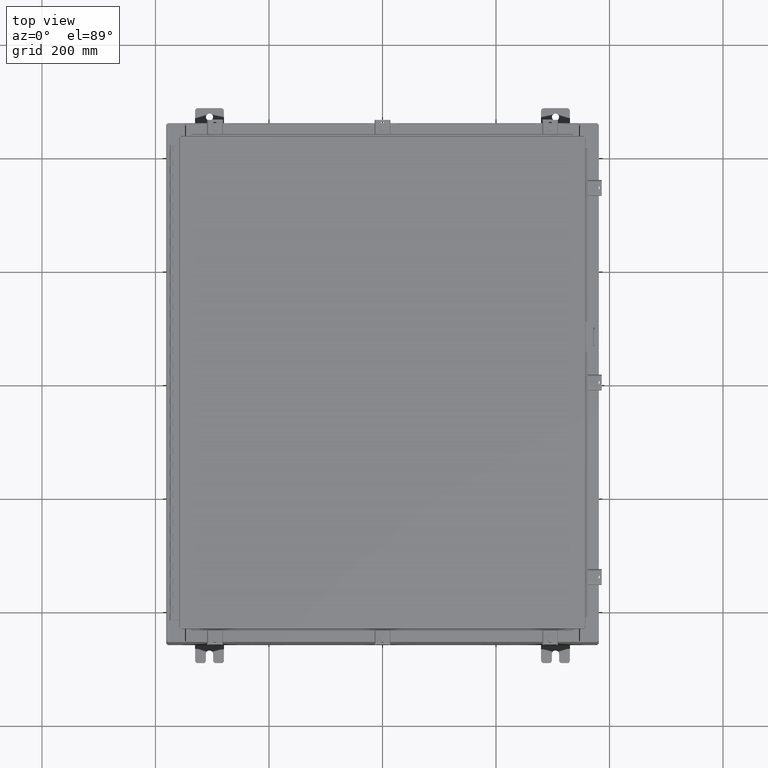
[diagram: clean part render]
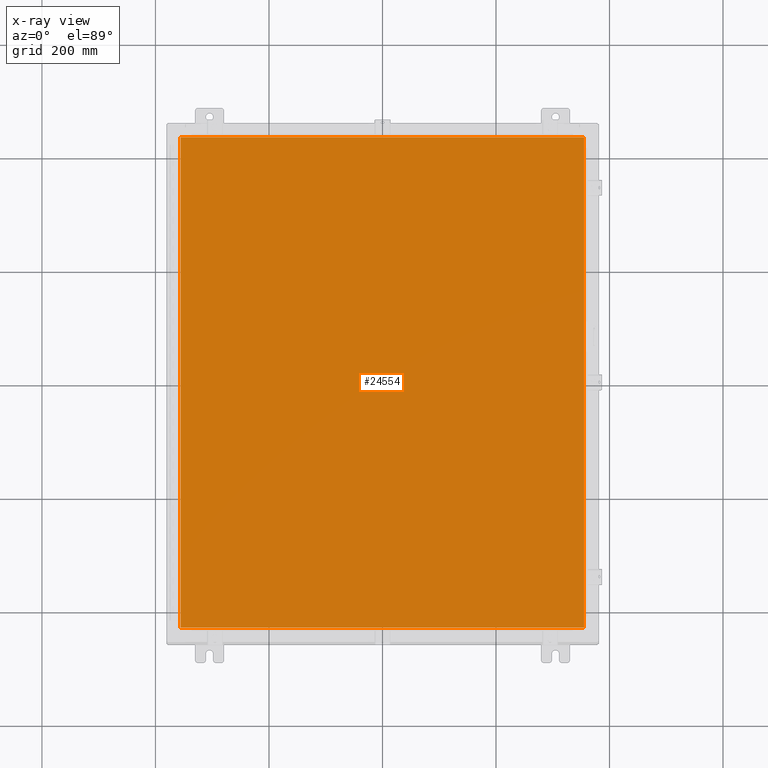
[diagram: x-ray — body ghosted, one internal face saturated and labeled with its STEP entity id]
A machine part, top view, then the same camera in x-ray: the body is ghosted and one INTERNAL B-rep face — a face not visible from any outside direction — is saturated and labeled: STEP entity #24554.
In plain terms, the highlighted planar face has unit normal (0, 0, -1).
Its self-contained STEP definition (entity closure, byte-faithful):
#842 = CARTESIAN_POINT ( 'NONE',  ( 13.99029999999999200, 17.00630000000000300, -0.07470000000000129300 ) ) ;
#859 = DIRECTION ( 'NONE',  ( 0.0000000000000000000, -1.000000000000000000, 0.0000000000000000000 ) ) ;
#1114 = CARTESIAN_POINT ( 'NONE',  ( 13.99029999999999200, 17.00630000000000300, -0.07470000000000000300 ) ) ;
#2441 = DIRECTION ( 'NONE',  ( 0.0000000000000000000, 1.000000000000000000, 0.0000000000000000000 ) ) ;
#4951 = EDGE_CURVE ( 'NONE', #21770, #6842, #22346, .T. ) ;
#5833 = VECTOR ( 'NONE', #23669, 39.37007874015748100 ) ;
#6627 = ORIENTED_EDGE ( 'NONE', *, *, #16957, .F. ) ;
#6842 = VERTEX_POINT ( 'NONE', #29648 ) ;
#10251 = DIRECTION ( 'NONE',  ( -1.000000000000000000, 0.0000000000000000000, -0.0000000000000000000 ) ) ;
#12563 = VECTOR ( 'NONE', #859, 39.37007874015748100 ) ;
#13214 = LINE ( 'NONE', #842, #21972 ) ;
#16957 = EDGE_CURVE ( 'NONE', #34428, #21770, #13214, .T. ) ;
#18318 = EDGE_CURVE ( 'NONE', #6842, #35982, #23492, .T. ) ;
#19674 = EDGE_CURVE ( 'NONE', #35982, #34428, #35352, .T. ) ;
#20026 = CARTESIAN_POINT ( 'NONE',  ( 0.0000000000000000000, 0.0000000000000000000, -0.07470000000000000300 ) ) ;
#20221 = ORIENTED_EDGE ( 'NONE', *, *, #19674, .F. ) ;
#21770 = VERTEX_POINT ( 'NONE', #23411 ) ;
#21972 = VECTOR ( 'NONE', #41975, 39.37007874015748100 ) ;
#22346 = LINE ( 'NONE', #42485, #12563 ) ;
#23246 = AXIS2_PLACEMENT_3D ( 'NONE', #20026, #30065, #10251 ) ;
#23411 = CARTESIAN_POINT ( 'NONE',  ( -13.99030000000000700, 17.00630000000000300, -0.07470000000000000300 ) ) ;
#23492 = LINE ( 'NONE', #24281, #5833 ) ;
#23669 = DIRECTION ( 'NONE',  ( 1.000000000000000000, -0.0000000000000000000, -0.0000000000000000000 ) ) ;
#24281 = CARTESIAN_POINT ( 'NONE',  ( -13.99030000000000700, -17.00630000000000000, -0.07470000000000019700 ) ) ;
#24554 = ADVANCED_FACE ( 'NONE', ( #39537 ), #26717, .T. ) ;
#26717 = PLANE ( 'NONE',  #23246 ) ;
#28092 = EDGE_LOOP ( 'NONE', ( #20221, #32747, #36403, #6627 ) ) ;
#29648 = CARTESIAN_POINT ( 'NONE',  ( -13.99030000000000700, -17.00630000000000000, -0.07470000000000000300 ) ) ;
#30065 = DIRECTION ( 'NONE',  ( 0.0000000000000000000, 0.0000000000000000000, -1.000000000000000000 ) ) ;
#32747 = ORIENTED_EDGE ( 'NONE', *, *, #18318, .F. ) ;
#34428 = VERTEX_POINT ( 'NONE', #1114 ) ;
#34571 = CARTESIAN_POINT ( 'NONE',  ( 13.99029999999999200, -17.00630000000000000, -0.07470000000000000300 ) ) ;
#35352 = LINE ( 'NONE', #35660, #43231 ) ;
#35660 = CARTESIAN_POINT ( 'NONE',  ( 13.99029999999999200, -17.00630000000000000, -0.07470000000000019700 ) ) ;
#35982 = VERTEX_POINT ( 'NONE', #34571 ) ;
#36403 = ORIENTED_EDGE ( 'NONE', *, *, #4951, .F. ) ;
#39537 = FACE_OUTER_BOUND ( 'NONE', #28092, .T. ) ;
#41975 = DIRECTION ( 'NONE',  ( -1.000000000000000000, -0.0000000000000000000, -0.0000000000000000000 ) ) ;
#42485 = CARTESIAN_POINT ( 'NONE',  ( -13.99030000000000700, 17.00630000000000000, -0.07470000000000019700 ) ) ;
#43231 = VECTOR ( 'NONE', #2441, 39.37007874015748100 ) ;